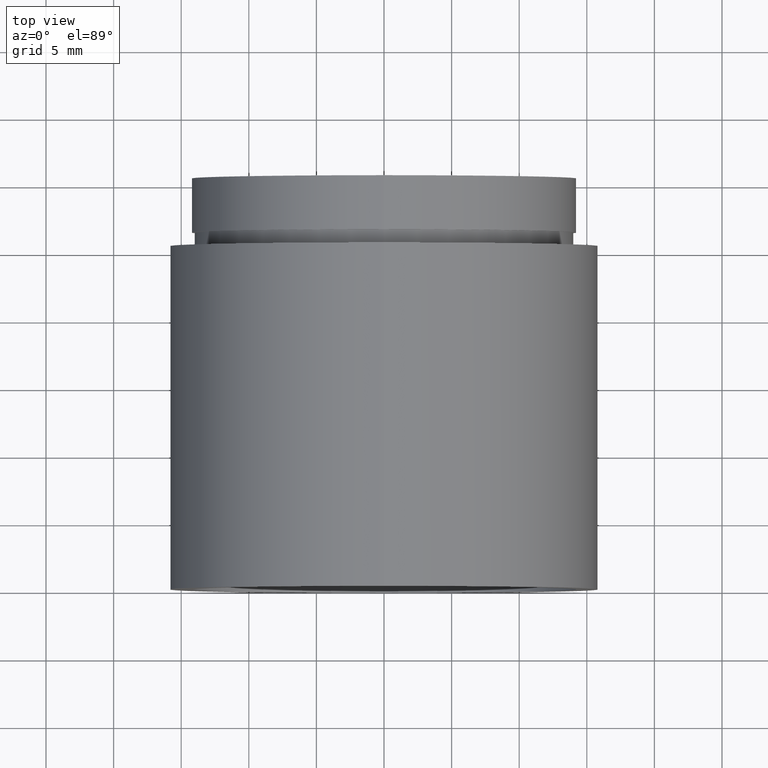
[diagram: clean part render]
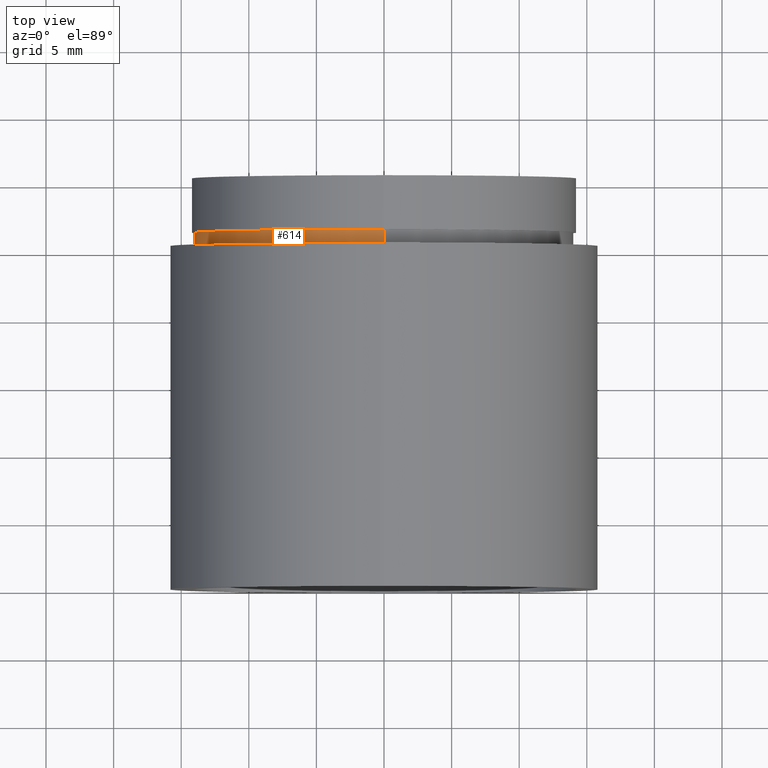
[diagram: same view with one face highlighted and labeled with its STEP entity id]
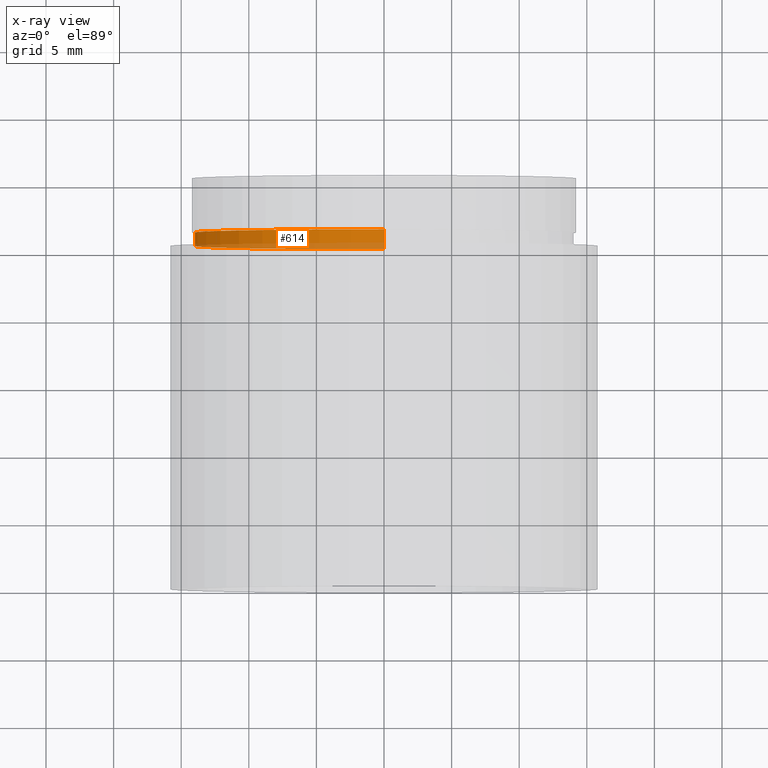
[diagram: x-ray of the same camera — body ghosted, the highlighted face saturated]
A machine part, top view. The second image highlights one B-rep face of the part: STEP entity #614.
The next image is the same camera in x-ray: the body ghosted, the highlighted face saturated — about 28% of this face is hidden behind the body in this view.
In plain terms, the highlighted cylindrical surface (partial cylindrical patch) has radius 14 mm, axis along (-0, 1, -0).
Its self-contained STEP definition (entity closure, byte-faithful):
#5 = ORIENTED_EDGE ( 'NONE', *, *, #529, .F. ) ;
#7 = AXIS2_PLACEMENT_3D ( 'NONE', #320, #229, #574 ) ;
#9 = EDGE_CURVE ( 'NONE', #536, #546, #155, .T. ) ;
#10 = CARTESIAN_POINT ( 'NONE',  ( 0.0000000000000000000, 26.39999999999997700, 0.0000000000000000000 ) ) ;
#68 = CARTESIAN_POINT ( 'NONE',  ( 1.714505518806296600E-015, 161.3761669434274500, -14.00000000000001800 ) ) ;
#74 = VECTOR ( 'NONE', #597, 1000.000000000000000 ) ;
#80 = LINE ( 'NONE', #506, #74 ) ;
#109 = CARTESIAN_POINT ( 'NONE',  ( 1.714505518806296600E-015, 25.39999999999997700, -14.00000000000001800 ) ) ;
#150 = EDGE_LOOP ( 'NONE', ( #5, #515, #360, #421 ) ) ;
#155 = CIRCLE ( 'NONE', #7, 14.00000000000001800 ) ;
#166 = LINE ( 'NONE', #68, #199 ) ;
#180 = VERTEX_POINT ( 'NONE', #270 ) ;
#199 = VECTOR ( 'NONE', #355, 1000.000000000000000 ) ;
#229 = DIRECTION ( 'NONE',  ( -0.0000000000000000000, 1.000000000000000000, -0.0000000000000000000 ) ) ;
#249 = CARTESIAN_POINT ( 'NONE',  ( 1.714505518806296600E-015, 26.39999999999997700, -14.00000000000001800 ) ) ;
#270 = CARTESIAN_POINT ( 'NONE',  ( 0.0000000000000000000, 26.39999999999997700, 14.00000000000001800 ) ) ;
#320 = CARTESIAN_POINT ( 'NONE',  ( 0.0000000000000000000, 25.39999999999997700, 0.0000000000000000000 ) ) ;
#346 = CYLINDRICAL_SURFACE ( 'NONE', #370, 14.00000000000001800 ) ;
#348 = DIRECTION ( 'NONE',  ( 0.0000000000000000000, 0.0000000000000000000, 1.000000000000000000 ) ) ;
#355 = DIRECTION ( 'NONE',  ( -0.0000000000000000000, 1.000000000000000000, -0.0000000000000000000 ) ) ;
#357 = CARTESIAN_POINT ( 'NONE',  ( 0.0000000000000000000, 161.3761669434274500, 0.0000000000000000000 ) ) ;
#360 = ORIENTED_EDGE ( 'NONE', *, *, #554, .T. ) ;
#370 = AXIS2_PLACEMENT_3D ( 'NONE', #357, #595, #348 ) ;
#387 = FACE_OUTER_BOUND ( 'NONE', #150, .T. ) ;
#388 = DIRECTION ( 'NONE',  ( 0.0000000000000000000, 0.0000000000000000000, 1.000000000000000000 ) ) ;
#394 = CARTESIAN_POINT ( 'NONE',  ( 0.0000000000000000000, 25.39999999999997700, 14.00000000000001800 ) ) ;
#411 = VERTEX_POINT ( 'NONE', #249 ) ;
#421 = ORIENTED_EDGE ( 'NONE', *, *, #469, .F. ) ;
#469 = EDGE_CURVE ( 'NONE', #411, #180, #604, .T. ) ;
#496 = DIRECTION ( 'NONE',  ( -0.0000000000000000000, 1.000000000000000000, -0.0000000000000000000 ) ) ;
#506 = CARTESIAN_POINT ( 'NONE',  ( 0.0000000000000000000, 161.3761669434274500, 14.00000000000001800 ) ) ;
#515 = ORIENTED_EDGE ( 'NONE', *, *, #9, .T. ) ;
#529 = EDGE_CURVE ( 'NONE', #536, #411, #166, .T. ) ;
#536 = VERTEX_POINT ( 'NONE', #109 ) ;
#546 = VERTEX_POINT ( 'NONE', #394 ) ;
#554 = EDGE_CURVE ( 'NONE', #546, #180, #80, .T. ) ;
#574 = DIRECTION ( 'NONE',  ( 0.0000000000000000000, 0.0000000000000000000, 1.000000000000000000 ) ) ;
#595 = DIRECTION ( 'NONE',  ( -0.0000000000000000000, 1.000000000000000000, -0.0000000000000000000 ) ) ;
#597 = DIRECTION ( 'NONE',  ( -0.0000000000000000000, 1.000000000000000000, -0.0000000000000000000 ) ) ;
#604 = CIRCLE ( 'NONE', #612, 14.00000000000001800 ) ;
#612 = AXIS2_PLACEMENT_3D ( 'NONE', #10, #496, #388 ) ;
#614 = ADVANCED_FACE ( 'NONE', ( #387 ), #346, .T. ) ;